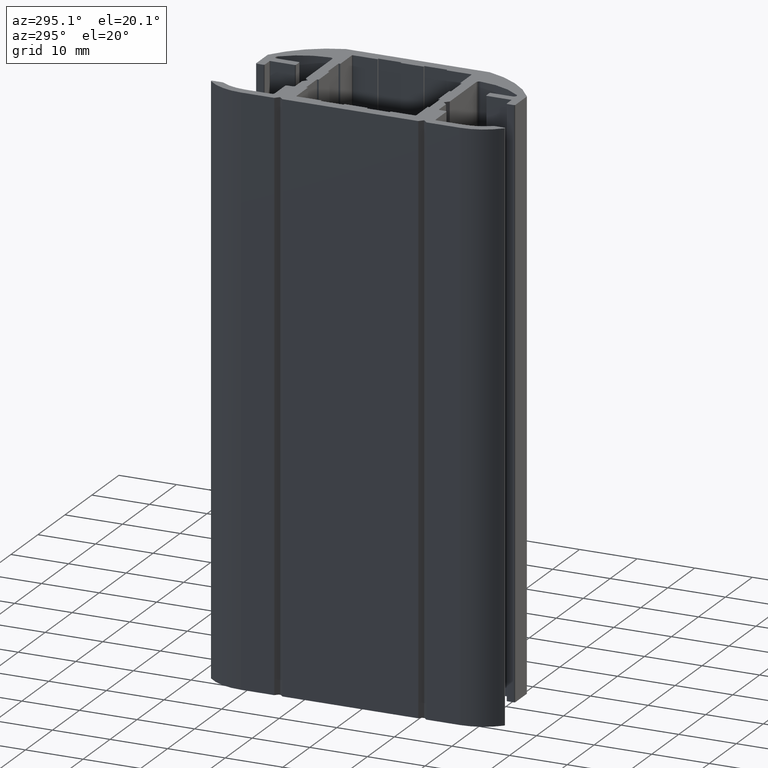
[diagram: clean part render]
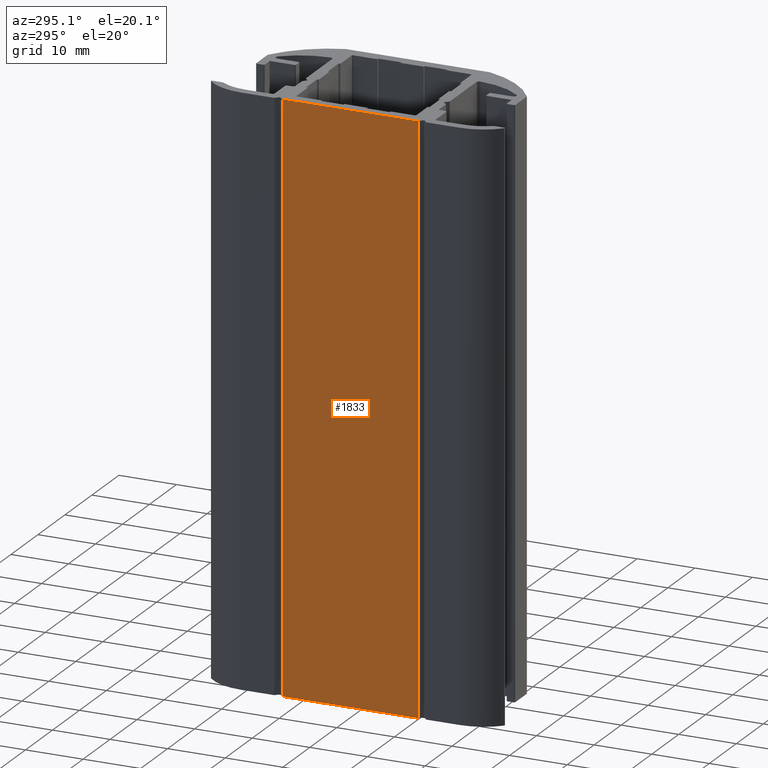
[diagram: same view with one face highlighted and labeled with its STEP entity id]
A machine part, auxiliary view. The second image highlights one B-rep face of the part: STEP entity #1833.
In plain terms, the highlighted planar face has unit normal (-1, 0, 0).
Its self-contained STEP definition (entity closure, byte-faithful):
#1777=CARTESIAN_POINT('',(-24.999999997365649,11.792893217475978,0.0));
#1778=VERTEX_POINT('',#1777);
#1785=CARTESIAN_POINT('',(-24.999999997365649,11.792893217475978,100.0));
#1786=VERTEX_POINT('',#1785);
#1787=CARTESIAN_POINT('',(-24.999999997365649,11.792893217475978,0.0));
#1788=DIRECTION('',(0.0,0.0,1.0));
#1789=VECTOR('',#1788,100.0);
#1790=LINE('',#1787,#1789);
#1791=EDGE_CURVE('',#1778,#1786,#1790,.T.);
#1803=CARTESIAN_POINT('',(-24.999999997365649,11.792893217475978,0.0));
#1804=DIRECTION('',(-1.0,0.0,0.0));
#1805=DIRECTION('',(0.0,-1.0,0.0));
#1806=AXIS2_PLACEMENT_3D('',#1803,#1804,#1805);
#1807=PLANE('',#1806);
#1808=CARTESIAN_POINT('',(-24.999999997365649,-11.792893217792141,0.0));
#1809=VERTEX_POINT('',#1808);
#1810=CARTESIAN_POINT('',(-24.999999997365649,11.792893217475978,0.0));
#1811=DIRECTION('',(0.0,-1.0,0.0));
#1812=VECTOR('',#1811,23.585786435268119);
#1813=LINE('',#1810,#1812);
#1814=EDGE_CURVE('',#1778,#1809,#1813,.T.);
#1815=ORIENTED_EDGE('',*,*,#1814,.T.);
#1816=CARTESIAN_POINT('',(-24.999999997365649,-11.792893217792141,100.0));
#1817=VERTEX_POINT('',#1816);
#1818=CARTESIAN_POINT('',(-24.999999997365649,-11.792893217792141,0.0));
#1819=DIRECTION('',(0.0,0.0,1.0));
#1820=VECTOR('',#1819,100.0);
#1821=LINE('',#1818,#1820);
#1822=EDGE_CURVE('',#1809,#1817,#1821,.T.);
#1823=ORIENTED_EDGE('',*,*,#1822,.T.);
#1824=CARTESIAN_POINT('',(-24.999999997365649,11.792893217475978,100.0));
#1825=DIRECTION('',(0.0,-1.0,0.0));
#1826=VECTOR('',#1825,23.585786435268119);
#1827=LINE('',#1824,#1826);
#1828=EDGE_CURVE('',#1786,#1817,#1827,.T.);
#1829=ORIENTED_EDGE('',*,*,#1828,.F.);
#1830=ORIENTED_EDGE('',*,*,#1791,.F.);
#1831=EDGE_LOOP('',(#1815,#1823,#1829,#1830));
#1832=FACE_OUTER_BOUND('',#1831,.T.);
#1833=ADVANCED_FACE('',(#1832),#1807,.T.);